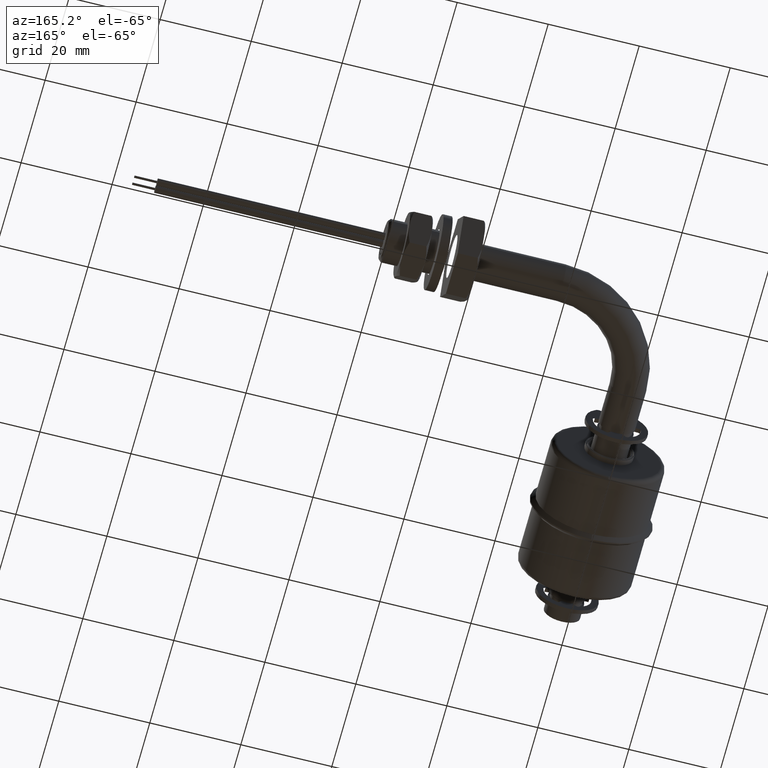
[diagram: clean part render]
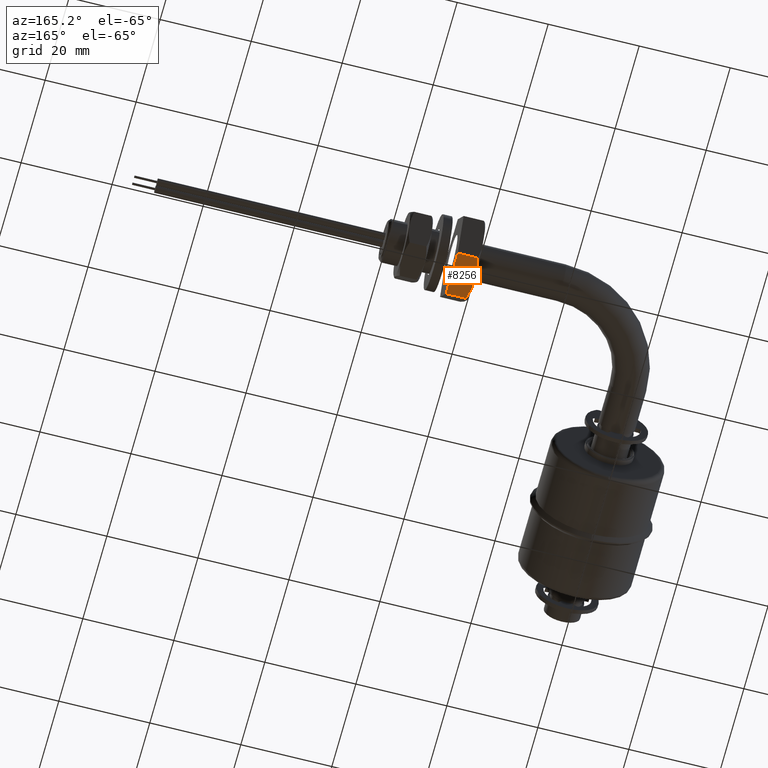
[diagram: same view with one face highlighted and labeled with its STEP entity id]
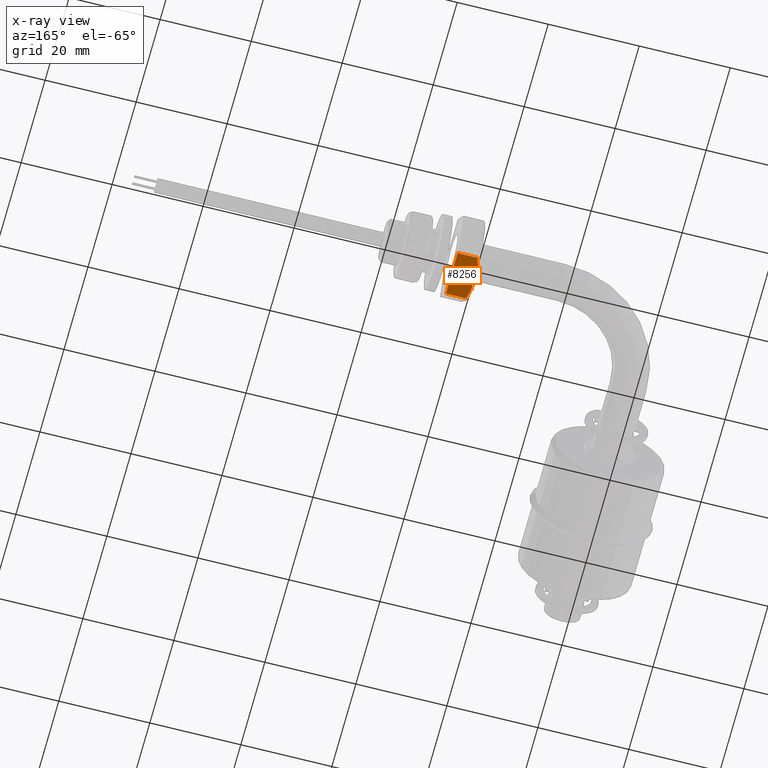
[diagram: x-ray of the same camera — body ghosted, the highlighted face saturated]
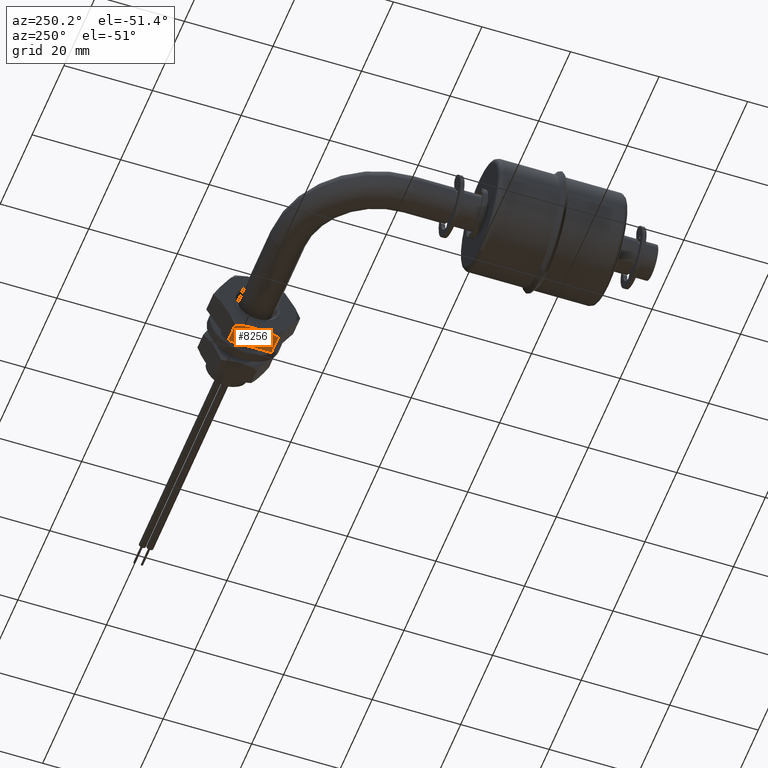
[diagram: same view with one face highlighted and labeled with its STEP entity id]
A machine part, auxiliary view. The second image highlights one B-rep face of the part: STEP entity #8256.
The next image is the same camera in x-ray: the body ghosted, the highlighted face saturated — about 0% of this face is hidden behind the body in this view.
A second angle (auxiliary view) of the same face is appended — the face is thin or edge-on in the first view.
In plain terms, the highlighted planar face has unit normal (0, 0, 1).
Its self-contained STEP definition (entity closure, byte-faithful):
#121 = EDGE_CURVE ( 'NONE', #5098, #4268, #6628, .T. ) ;
#217 = VECTOR ( 'NONE', #3873, 1000.000000000000000 ) ;
#510 = EDGE_LOOP ( 'NONE', ( #5082, #5979, #5421, #6752, #2859, #2088 ) ) ;
#1012 = CARTESIAN_POINT ( 'NONE',  ( 58.99999999999998579, 79.90747728811183492, -8.500000000000000000 ) ) ;
#1366 = VERTEX_POINT ( 'NONE', #10045 ) ;
#1421 = LINE ( 'NONE', #7883, #2113 ) ;
#1910 = CARTESIAN_POINT ( 'NONE',  ( 39.45584112176335623, 79.48655725425862784, -8.500000000000000000 ) ) ;
#2088 = ORIENTED_EDGE ( 'NONE', *, *, #3548, .T. ) ;
#2113 = VECTOR ( 'NONE', #6977, 1000.000000000000000 ) ;
#2152 = CARTESIAN_POINT ( 'NONE',  ( 39.15079875844858748, 71.79350564245254418, -8.500000000000000000 ) ) ;
#2210 = VECTOR ( 'NONE', #2598, 1000.000000000000000 ) ;
#2262 = CARTESIAN_POINT ( 'NONE',  ( 38.99999999999997868, 70.09252271188817929, -8.500000000000000000 ) ) ;
#2533 = DIRECTION ( 'NONE',  ( 0.0000000000000000000, 0.0000000000000000000, 1.000000000000000000 ) ) ;
#2598 = DIRECTION ( 'NONE',  ( -1.000000000000000000, -2.096420638459660274E-16, 0.0000000000000000000 ) ) ;
#2859 = ORIENTED_EDGE ( 'NONE', *, *, #8405, .F. ) ;
#3311 = CARTESIAN_POINT ( 'NONE',  ( 38.99999999999997868, 72.66474323020227644, -8.500000000000000000 ) ) ;
#3335 = CARTESIAN_POINT ( 'NONE',  ( 38.99999999999997868, 77.33525676979772356, -8.500000000000000000 ) ) ;
#3516 = CARTESIAN_POINT ( 'NONE',  ( 39.57735026918960131, 79.90747728811182071, -8.500000000000000000 ) ) ;
#3548 = EDGE_CURVE ( 'NONE', #4697, #4371, #5556, .T. ) ;
#3618 = CARTESIAN_POINT ( 'NONE',  ( 39.34492607512010665, 79.06188599017110619, -8.500000000000000000 ) ) ;
#3651 = DIRECTION ( 'NONE',  ( -1.000000000000000000, -2.096420638459660274E-16, 0.0000000000000000000 ) ) ;
#3814 = CARTESIAN_POINT ( 'NONE',  ( 38.99999999999997868, 72.66474323020227644, -8.500000000000000000 ) ) ;
#3873 = DIRECTION ( 'NONE',  ( -2.096420638459660274E-16, 1.000000000000000000, 0.0000000000000000000 ) ) ;
#4090 = FACE_OUTER_BOUND ( 'NONE', #510, .T. ) ;
#4263 = EDGE_CURVE ( 'NONE', #1366, #7223, #4502, .T. ) ;
#4268 = VERTEX_POINT ( 'NONE', #8502 ) ;
#4371 = VERTEX_POINT ( 'NONE', #3335 ) ;
#4450 = CARTESIAN_POINT ( 'NONE',  ( 58.99999999999998579, 70.09252271188819350, -8.500000000000000000 ) ) ;
#4502 = LINE ( 'NONE', #4450, #10349 ) ;
#4563 = CARTESIAN_POINT ( 'NONE',  ( 39.57735026918960131, 70.09252271188817929, -8.500000000000000000 ) ) ;
#4697 = VERTEX_POINT ( 'NONE', #3311 ) ;
#4728 = CARTESIAN_POINT ( 'NONE',  ( 43.99999999999997158, 79.90747728811182071, -8.500000000000000000 ) ) ;
#5082 = ORIENTED_EDGE ( 'NONE', *, *, #9867, .F. ) ;
#5098 = VERTEX_POINT ( 'NONE', #4728 ) ;
#5398 = CARTESIAN_POINT ( 'NONE',  ( 39.34532277496585095, 70.93661540992589210, -8.500000000000000000 ) ) ;
#5421 = ORIENTED_EDGE ( 'NONE', *, *, #6982, .F. ) ;
#5556 = LINE ( 'NONE', #2262, #217 ) ;
#5666 = PLANE ( 'NONE',  #5849 ) ;
#5849 = AXIS2_PLACEMENT_3D ( 'NONE', #6612, #2533, #9670 ) ;
#5979 = ORIENTED_EDGE ( 'NONE', *, *, #121, .F. ) ;
#5982 = CARTESIAN_POINT ( 'NONE',  ( 38.99999999999997868, 77.33525676979772356, -8.500000000000000000 ) ) ;
#6029 = CARTESIAN_POINT ( 'NONE',  ( 39.15006128594811941, 78.20299540632406377, -8.500000000000000000 ) ) ;
#6176 = B_SPLINE_CURVE_WITH_KNOTS ( 'NONE', 3,
 ( #3814, #9495, #2152, #5398, #7935, #4563 ),
 .UNSPECIFIED., .F., .F.,
 ( 4, 2, 4 ),
 ( 0.01364752711180099165, 0.01496165007538972566, 0.01627577303897845967 ),
 .UNSPECIFIED. ) ;
#6262 = B_SPLINE_CURVE_WITH_KNOTS ( 'NONE', 3,
 ( #3516, #1910, #3618, #6029, #10146, #5982 ),
 .UNSPECIFIED., .F., .F.,
 ( 4, 2, 4 ),
 ( 0.006323668468513907528, 0.007635682499521255495, 0.008947696530528603462 ),
 .UNSPECIFIED. ) ;
#6612 = CARTESIAN_POINT ( 'NONE',  ( 58.99999999999998579, 70.09252271188819350, -8.500000000000000000 ) ) ;
#6628 = LINE ( 'NONE', #1012, #2210 ) ;
#6752 = ORIENTED_EDGE ( 'NONE', *, *, #4263, .T. ) ;
#6977 = DIRECTION ( 'NONE',  ( -6.123233995736764803E-17, 1.000000000000000000, 0.0000000000000000000 ) ) ;
#6982 = EDGE_CURVE ( 'NONE', #1366, #5098, #1421, .T. ) ;
#7223 = VERTEX_POINT ( 'NONE', #9679 ) ;
#7883 = CARTESIAN_POINT ( 'NONE',  ( 43.99999999999997158, 70.09252271188817929, -8.500000000000000000 ) ) ;
#7935 = CARTESIAN_POINT ( 'NONE',  ( 39.45603792767563078, 70.51276099006268794, -8.500000000000000000 ) ) ;
#8256 = ADVANCED_FACE ( 'NONE', ( #4090 ), #5666, .F. ) ;
#8405 = EDGE_CURVE ( 'NONE', #4697, #7223, #6176, .T. ) ;
#8502 = CARTESIAN_POINT ( 'NONE',  ( 39.57735026918960131, 79.90747728811182071, -8.500000000000000000 ) ) ;
#9495 = CARTESIAN_POINT ( 'NONE',  ( 39.06678703522792517, 72.22808843756391184, -8.500000000000000000 ) ) ;
#9670 = DIRECTION ( 'NONE',  ( 2.096420638459660274E-16, -1.000000000000000000, 0.0000000000000000000 ) ) ;
#9679 = CARTESIAN_POINT ( 'NONE',  ( 39.57735026918960131, 70.09252271188817929, -8.500000000000000000 ) ) ;
#9867 = EDGE_CURVE ( 'NONE', #4268, #4371, #6262, .T. ) ;
#10045 = CARTESIAN_POINT ( 'NONE',  ( 43.99999999999997158, 70.09252271188817929, -8.500000000000000000 ) ) ;
#10146 = CARTESIAN_POINT ( 'NONE',  ( 39.06626995418415049, 77.76853087761945460, -8.500000000000000000 ) ) ;
#10349 = VECTOR ( 'NONE', #3651, 1000.000000000000000 ) ;